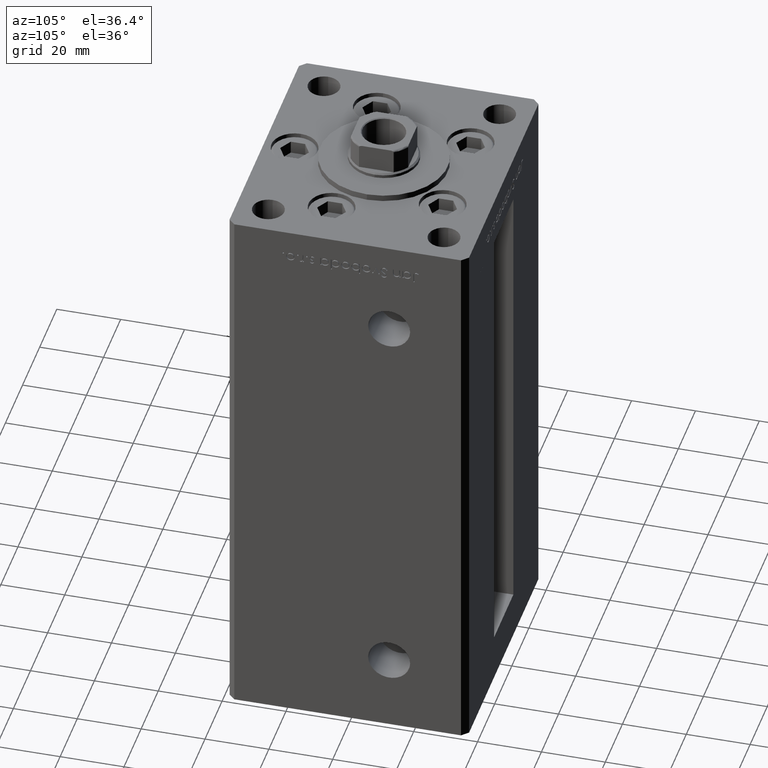
[diagram: clean part render]
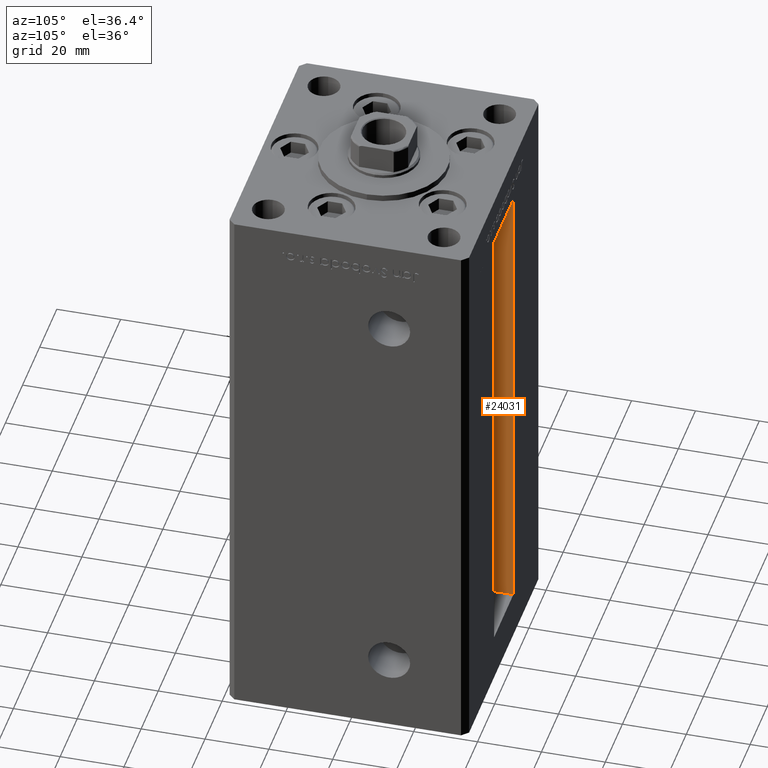
[diagram: same view with one face highlighted and labeled with its STEP entity id]
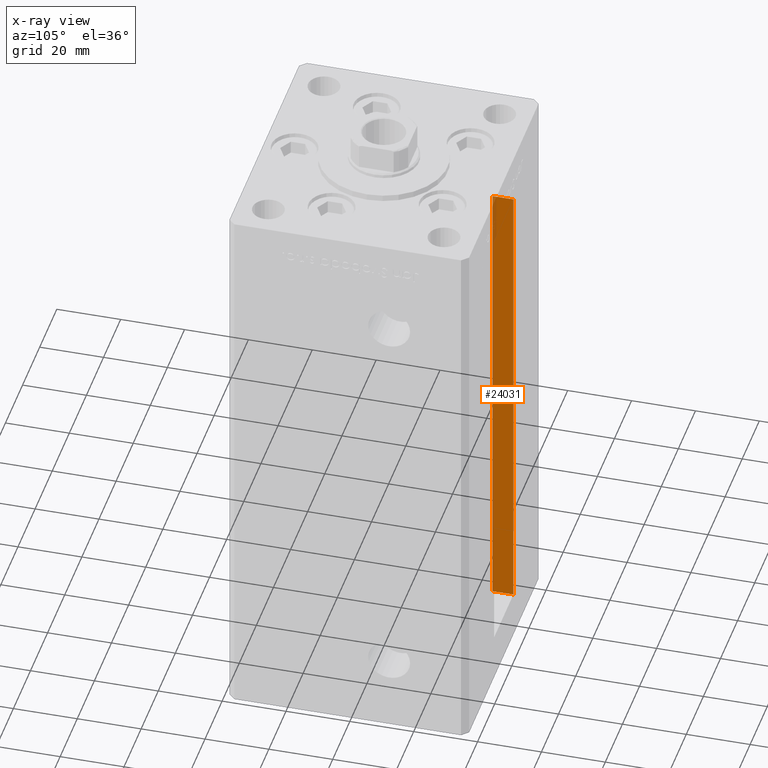
[diagram: x-ray of the same camera — body ghosted, the highlighted face saturated]
A machine part, auxiliary view. The second image highlights one B-rep face of the part: STEP entity #24031.
The next image is the same camera in x-ray: the body ghosted, the highlighted face saturated — about 8% of this face is hidden behind the body in this view.
In plain terms, the highlighted planar face has unit normal (-1, 0, 0).
Its self-contained STEP definition (entity closure, byte-faithful):
#614 = VERTEX_POINT ( 'NONE', #11289 ) ;
#1148 = EDGE_CURVE ( 'NONE', #48858, #614, #1158, .T. ) ;
#1158 = LINE ( 'NONE', #41809, #39627 ) ;
#1229 = DIRECTION ( 'NONE',  ( 0.000000000000000000, 0.000000000000000000, 1.000000000000000000 ) ) ;
#1420 = EDGE_LOOP ( 'NONE', ( #44472, #36161, #17576, #26378 ) ) ;
#2733 = VERTEX_POINT ( 'NONE', #43519 ) ;
#3495 = VECTOR ( 'NONE', #3784, 1000.000000000000000 ) ;
#3784 = DIRECTION ( 'NONE',  ( -0.000000000000000000, -0.000000000000000000, 1.000000000000000000 ) ) ;
#3842 = EDGE_CURVE ( 'NONE', #2733, #34082, #23565, .T. ) ;
#5194 = FACE_OUTER_BOUND ( 'NONE', #1420, .T. ) ;
#7634 = EDGE_CURVE ( 'NONE', #48858, #2733, #51368, .T. ) ;
#8248 = CARTESIAN_POINT ( 'NONE',  ( -11.25000000000000000, 30.99999999999999289, 0.000000000000000000 ) ) ;
#9829 = LINE ( 'NONE', #33074, #18957 ) ;
#11289 = CARTESIAN_POINT ( 'NONE',  ( -11.25000000000000000, 37.50000000000000000, 148.5000000000000000 ) ) ;
#15227 = DIRECTION ( 'NONE',  ( -0.000000000000000000, -1.000000000000000000, -0.000000000000000000 ) ) ;
#17576 = ORIENTED_EDGE ( 'NONE', *, *, #1148, .T. ) ;
#18957 = VECTOR ( 'NONE', #28850, 1000.000000000000000 ) ;
#21290 = PLANE ( 'NONE',  #24722 ) ;
#23565 = LINE ( 'NONE', #8248, #3495 ) ;
#24031 = ADVANCED_FACE ( 'NONE', ( #5194 ), #21290, .F. ) ;
#24722 = AXIS2_PLACEMENT_3D ( 'NONE', #37395, #27720, #1229 ) ;
#26378 = ORIENTED_EDGE ( 'NONE', *, *, #34140, .F. ) ;
#27720 = DIRECTION ( 'NONE',  ( -1.000000000000000000, 0.000000000000000000, 0.000000000000000000 ) ) ;
#27803 = CARTESIAN_POINT ( 'NONE',  ( -11.25000000000000000, 30.99999999999999289, 148.5000000000000000 ) ) ;
#28850 = DIRECTION ( 'NONE',  ( 0.000000000000000000, 1.000000000000000000, 0.000000000000000000 ) ) ;
#32109 = CARTESIAN_POINT ( 'NONE',  ( -11.25000000000000000, 30.99999999999999289, 0.000000000000000000 ) ) ;
#33074 = CARTESIAN_POINT ( 'NONE',  ( -11.25000000000000000, 0.000000000000000000, 148.5000000000000000 ) ) ;
#34082 = VERTEX_POINT ( 'NONE', #27803 ) ;
#34140 = EDGE_CURVE ( 'NONE', #34082, #614, #9829, .T. ) ;
#36161 = ORIENTED_EDGE ( 'NONE', *, *, #7634, .F. ) ;
#37395 = CARTESIAN_POINT ( 'NONE',  ( -11.25000000000000000, 30.99999999999999289, 0.000000000000000000 ) ) ;
#37579 = DIRECTION ( 'NONE',  ( -0.000000000000000000, -0.000000000000000000, 1.000000000000000000 ) ) ;
#39627 = VECTOR ( 'NONE', #37579, 1000.000000000000000 ) ;
#41809 = CARTESIAN_POINT ( 'NONE',  ( -11.25000000000000000, 37.50000000000000000, 0.000000000000000000 ) ) ;
#43519 = CARTESIAN_POINT ( 'NONE',  ( -11.25000000000000000, 30.99999999999999289, 0.000000000000000000 ) ) ;
#44462 = CARTESIAN_POINT ( 'NONE',  ( -11.25000000000000000, 37.50000000000000000, 0.000000000000000000 ) ) ;
#44472 = ORIENTED_EDGE ( 'NONE', *, *, #3842, .F. ) ;
#47406 = VECTOR ( 'NONE', #15227, 1000.000000000000000 ) ;
#48858 = VERTEX_POINT ( 'NONE', #44462 ) ;
#51368 = LINE ( 'NONE', #32109, #47406 ) ;